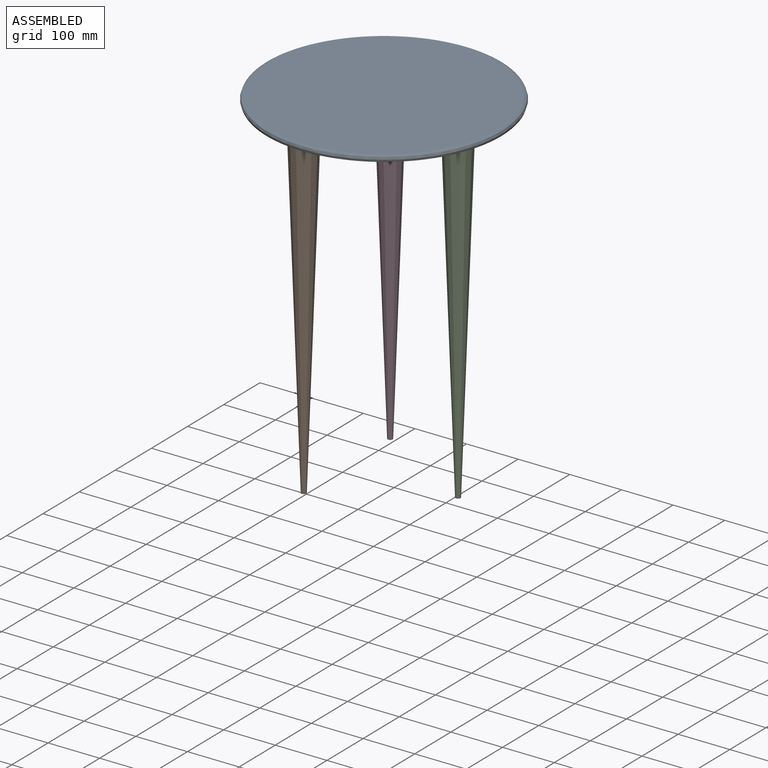
[diagram: assembled view]
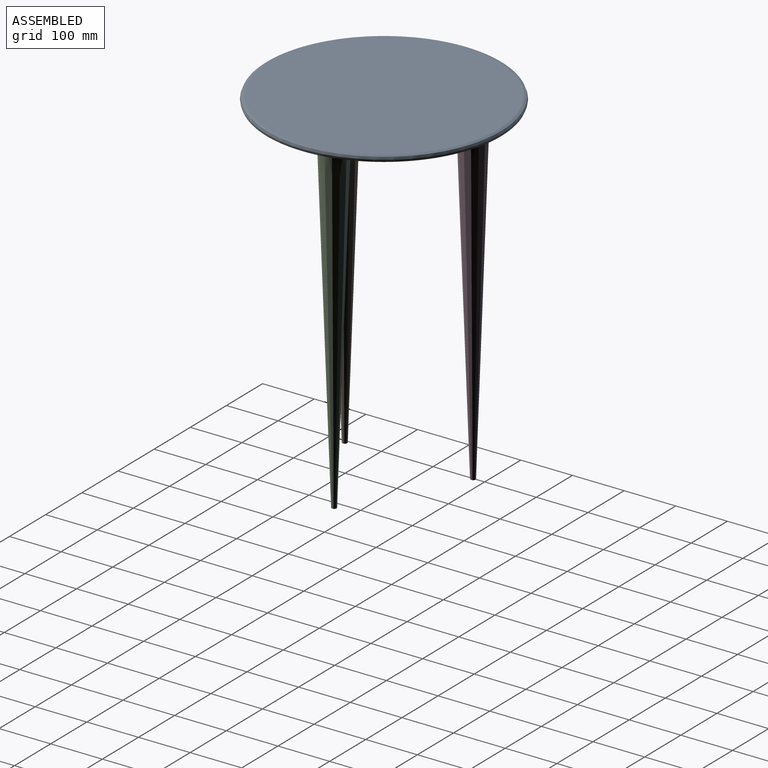
[diagram: assembled view, second angle]
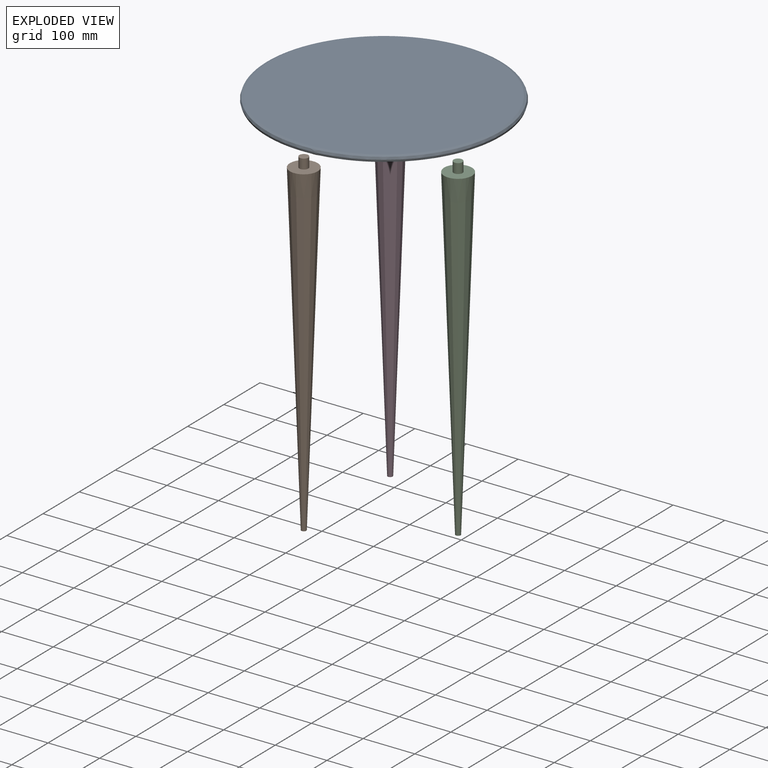
[diagram: exploded view]
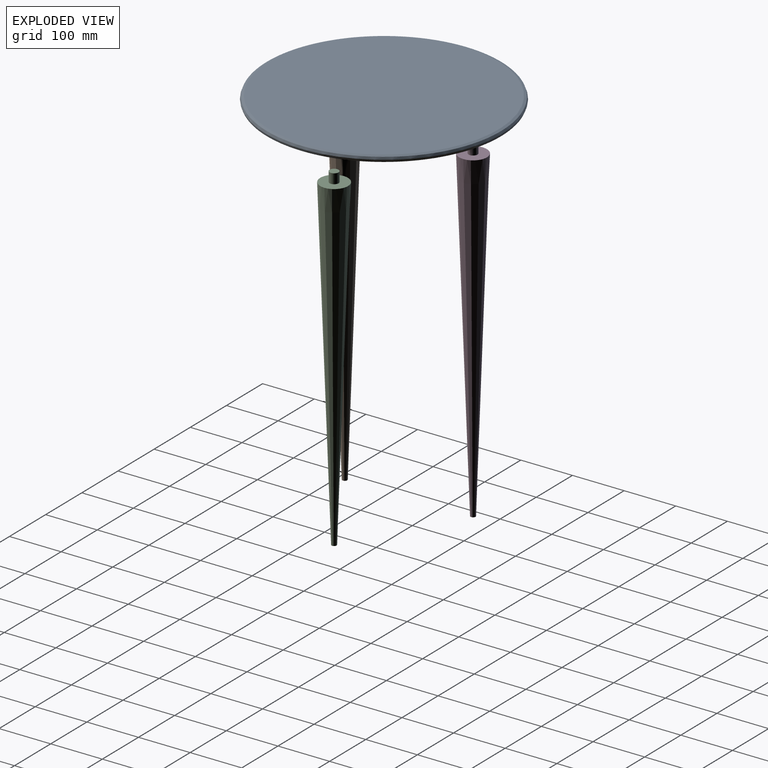
[diagram: exploded view, second angle]
ASSEMBLY  parts=4 mates=3
PART A: 16 faces, bbox 457.2x457.2x45.3 mm
  f0: plane 444.52x444.51mm, normal (0,0,1), area 155187.2mm2, adj f8
  f1: plane 444.52x444.51mm, normal (0,0,-1), area 135211.9mm2, adj f5,f6,f7,f9
  f2: plane 53.98x53.98mm, normal (0,0,-1), area 2048.6mm2, adj f6,f14
  f3: plane 53.98x53.98mm, normal (0,0,-1), area 2048.6mm2, adj f5,f12
  f4: plane 53.98x53.98mm, normal (0,0,-1), area 2048.6mm2, adj f7,f10
  f5: torus R=46.04mm, axis (0,0,-1), area 6375.6mm2, adj f1,f3
  f6: torus R=46.04mm, axis (0,0,-1), area 6375.6mm2, adj f1,f2
  f7: torus R=46.04mm, axis (0,0,-1), area 6375.6mm2, adj f1,f4
  f8: bspline ~457.24x457.22mm, area 14181.7mm2, adj f0,f9
  f9: bspline ~457.24x457.22mm, area 14181.7mm2, adj f1,f8
  f10: cylinder r=8.73mm len=19.05mm, axis (0,0,-1), area 1045.1mm2, adj f4,f11
  f11: plane 17.46x17.46mm, normal (0,0,-1), area 239.5mm2, adj f10
  f12: cylinder r=8.73mm len=19.05mm, axis (0,0,-1), area 1045.1mm2, adj f3,f13
  f13: plane 17.46x17.46mm, normal (0,0,-1), area 239.5mm2, adj f12
  f14: cylinder r=8.73mm len=19.05mm, axis (0,0,-1), area 1045.1mm2, adj f2,f15
  f15: plane 17.46x17.46mm, normal (0,0,-1), area 239.5mm2, adj f14
PART B: 5 faces, bbox 54x54x654.1 mm
  f0: cone r=26.99mm half-angle=2deg, axis (0,0,1), area 63477.5mm2, adj f1,f2
  f1: plane 9.63x9.63mm, normal (0,0,-1), area 72.8mm2, adj f0
  f2: plane 53.98x53.98mm, normal (0,0,1), area 2048.6mm2, adj f0,f3
  f3: cylinder r=8.73mm len=19.05mm, axis (0,0,-1), area 1045.1mm2, adj f2,f4
  f4: plane 17.46x17.46mm, normal (0,0,1), area 239.5mm2, adj f3
PART C: same geometry as B
PART D: same geometry as B
PLACE A t=(2.53,-2.9,-26.32)mm
PLACE B t=(-66.02,-126.83,-26.32)mm
PLACE C t=(144.12,-0.31,-26.32)mm
PLACE D t=(-70.52,118.42,-26.32)mm
MATE fastened C.f3 <-> A.f7  axis (0,0,1) through (144.12,-0.31,-7.27)mm
MATE fastened D.f3 <-> A.f5  axis (0,0,1) through (-70.52,118.42,-7.27)mm
MATE fastened B.f3 <-> A.f6  axis (0,0,1) through (-66.02,-126.83,-7.27)mm
